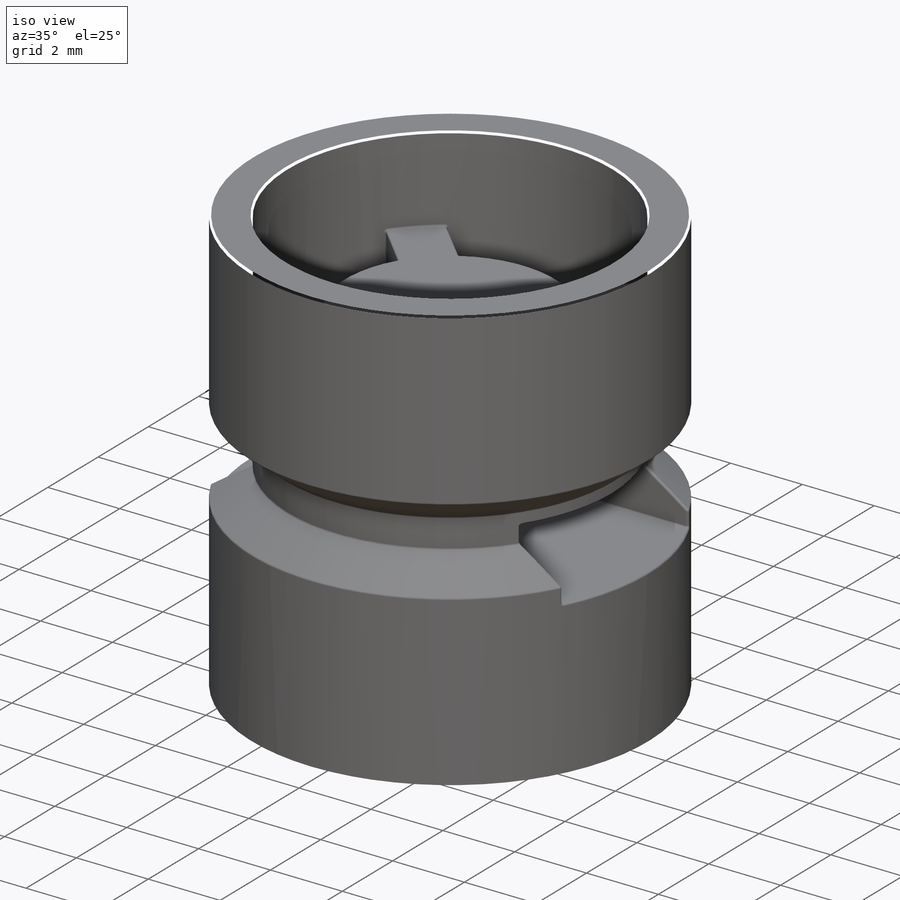
[diagram: iso view]
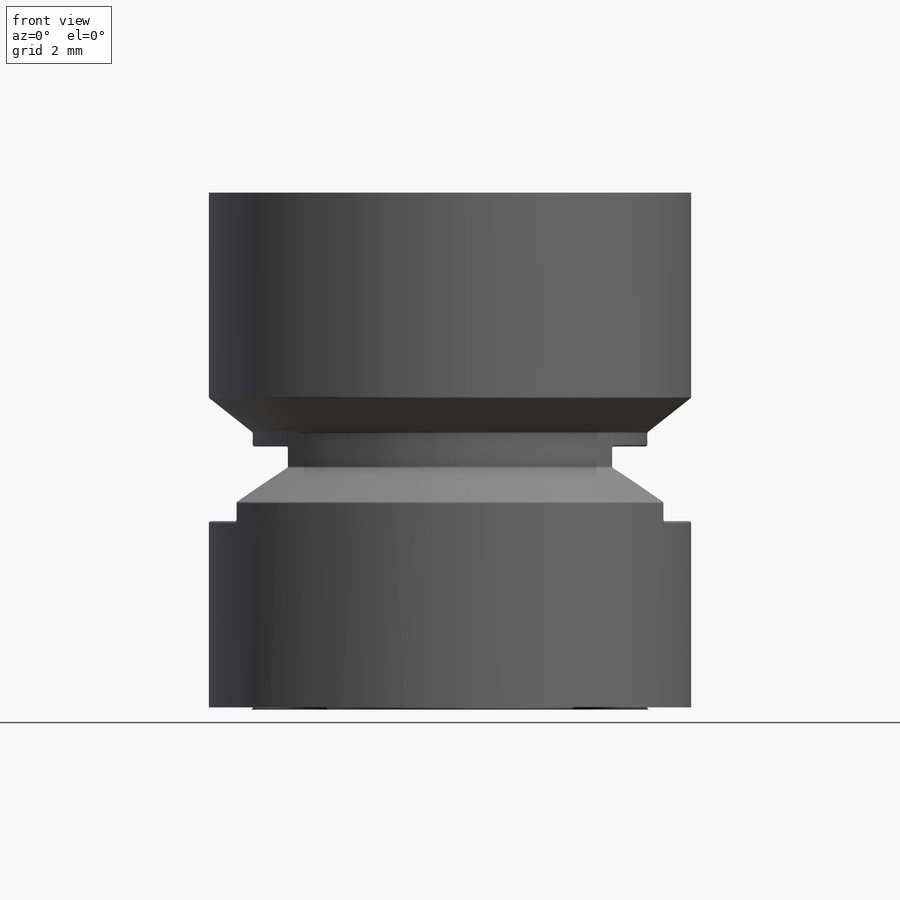
[diagram: front view]
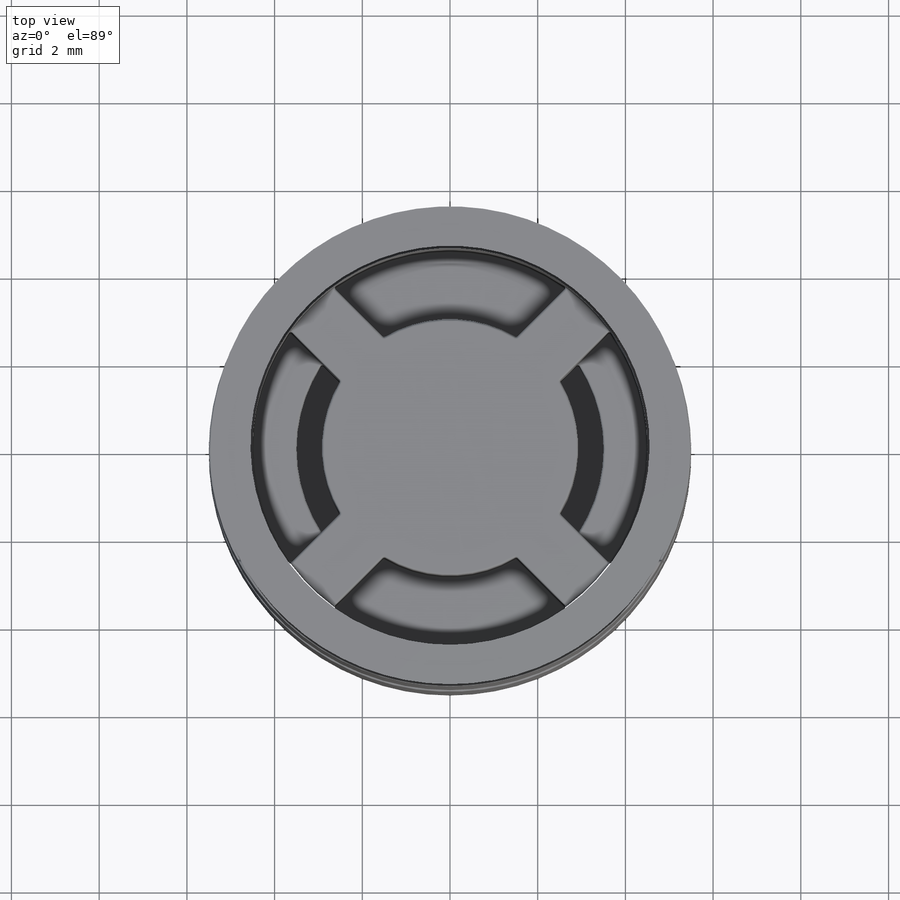
[diagram: top view]
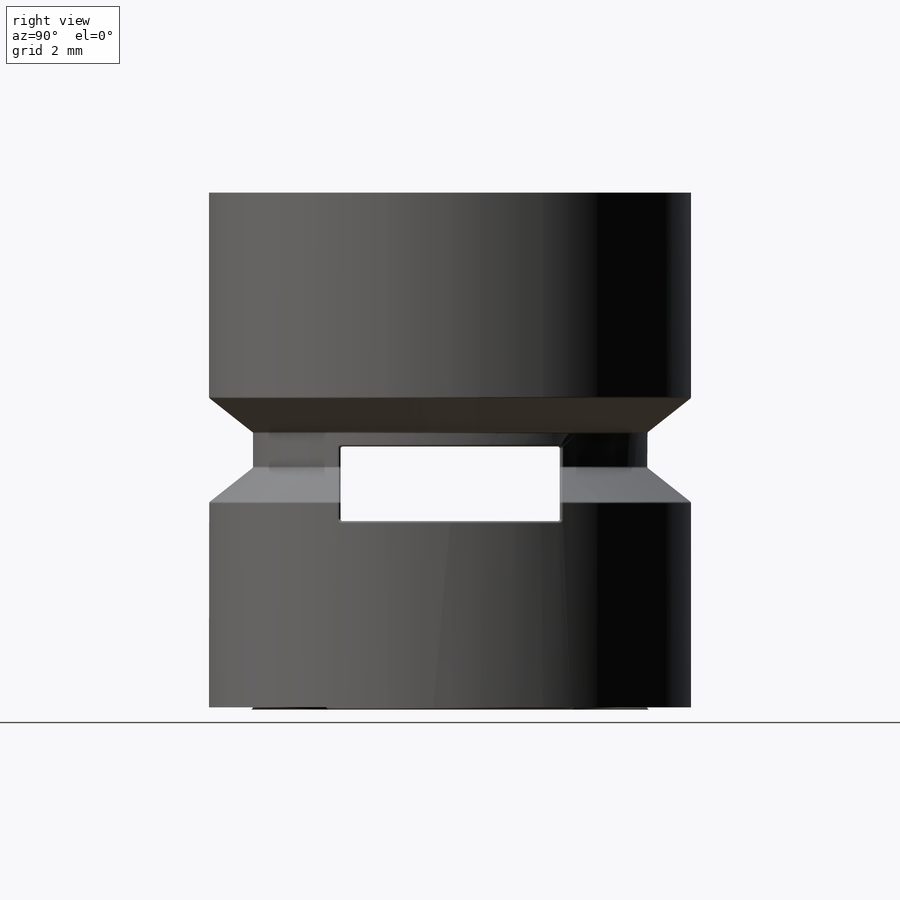
[diagram: right view]
SOLIDWORKS PART (.sldprt)
format: sldprt  version: not decoded by parser v0  size: 1,026,048 bytes
history: native  units: mm
features: sketch x10, cut_extrude x4, extrude x3, cut_revolve x2, material x1, fillet x1 (+14 scaffold rows collapsed)
feature tree (35):
  scaffold x14  (default folders/planes/origin — collapsed)
  material  "Material <not specified>"
  sketch  "Sketch1"  dims[D1=11.0mm]
  extrude  "Extrude1"  Depth=11.84mm
  sketch  "Sketch2"  dims[D1=1.0mm]
  cut_extrude  "Extrude2"  Depth=4.38mm
  sketch  "Sketch3"  dims[D1=1.0mm]
  cut_extrude  "Extrude3"  Depth=3.04mm
  sketch  "Sketch4"  dims[D1=5.64mm D2=3.26mm D3=0.7mm D4=1.3mm]
  extrude  "Extrude4"  [1 undecoded]
  sketch  "Sketch6"  dims[c1.D1=1.0mm c1.D2=2.38mm c2.D1=1.19mm c2.D2=0.8mm c2.D3=1.0mm]
  cut_revolve  "Cut-Revolve1"  Angle=360deg
  sketch  "Sketch7"  dims[D1=1.7mm D2=5.0mm D3=4.3mm]
  cut_extrude  "Extrude8"  [1 undecoded]
  sketch  "Sketch9"  dims[D1=1.0mm]
  cut_extrude  "Extrude9"  [1 undecoded]
  sketch  "Sketch13"
  sketch  "Sketch15"  dims[c1.D1=0.5mm c1.D2=1.4mm c1.D3=~9.797959mm c2.D3=45.0deg c2.D4=~9.797959mm c3.D4=45.0deg c3.D3=~2.115224mm c4.D3=45.0deg]
  extrude  "Extrude20"  Depth=2mm
  sketch  "Sketch17"
  cut_revolve  "Cut-Revolve2"  Angle=360deg
  fillet  "Fillet1"  Radius=0.05mm
decode coverage: 15 of 20 modeling features carry decoded parameters
note: ~ marks probable driven/reference dimensions
note: 3 parameter values undecoded
summary: no parameter record found for 3 features
note: suppression state not decoded; provenance and decode notes live in map.json
